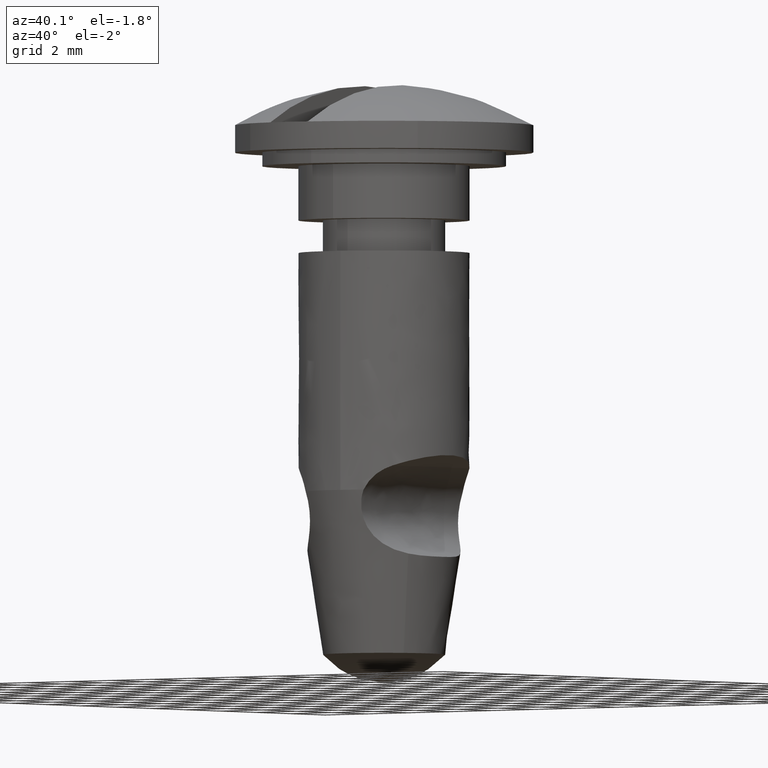
[diagram: clean part render]
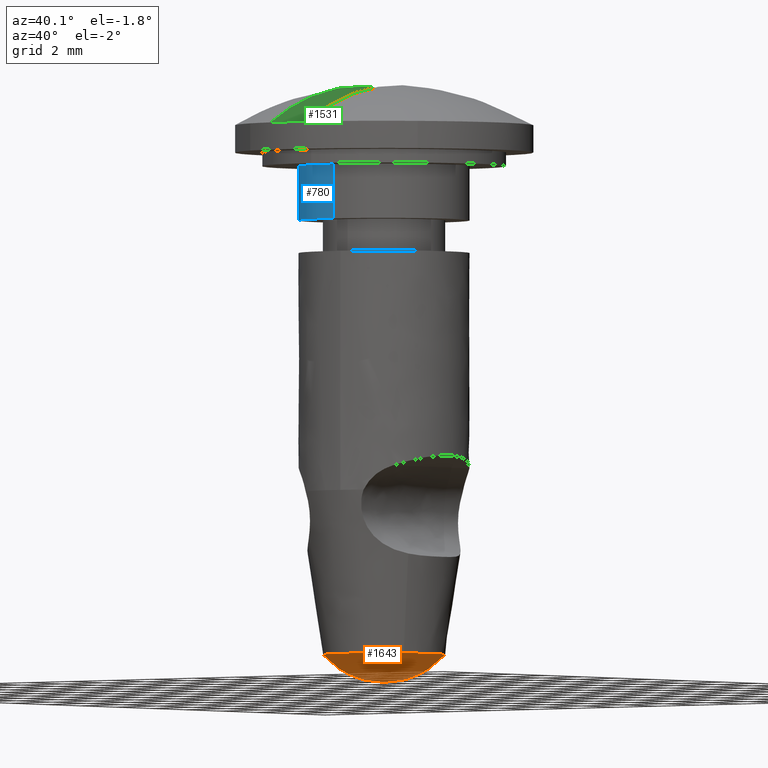
[diagram: same view with three faces highlighted in distinct colors, each labeled with its STEP entity id]
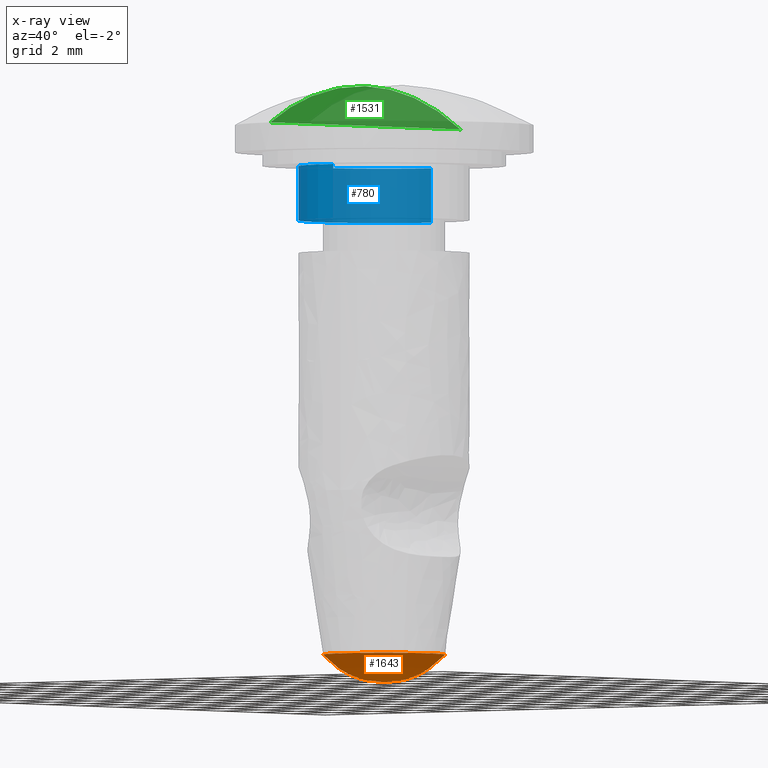
[diagram: x-ray of the same camera — body ghosted, the three highlighted faces saturated]
A machine part, auxiliary view with three faces highlighted in distinct colors.
The next image is the same camera in x-ray (body ghosted, the three faces saturated) — at least one of them is partly hidden behind the body in this view.
Their STEP definitions:

[orange] entity #1643 — the highlighted face is a freeform B-spline surface patch.
#66=CARTESIAN_POINT('',(-2.249943146963820,0.0,1.016622053279422));
#67=VERTEX_POINT('',#66);
#68=CARTESIAN_POINT('',(-1.776944158905297,1.380112811647953,1.016618732519282));
#69=VERTEX_POINT('',#68);
#70=CARTESIAN_POINT('',(-2.249943146963820,0.0,1.016622053279422));
#71=CARTESIAN_POINT('',(-2.249942949706229,0.771110511667350,1.016620392899352));
#72=CARTESIAN_POINT('',(-1.776944158905296,1.380112811647953,1.016618732519282));
#80=(BOUNDED_CURVE()B_SPLINE_CURVE(2,(#70,#71,#72),.UNSPECIFIED.,.F.,.U.)B_SPLINE_CURVE_WITH_KNOTS((3,3),(0.0,0.106108175314512),.UNSPECIFIED.)CURVE()GEOMETRIC_REPRESENTATION_ITEM()RATIONAL_B_SPLINE_CURVE((1.0,0.875686539958842,0.856898475213690))REPRESENTATION_ITEM(''));
#81=EDGE_CURVE('',#67,#69,#80,.T.);
#83=CARTESIAN_POINT('',(1.924413112960287,-1.165708945640619,1.016620591783184));
#84=VERTEX_POINT('',#83);
#85=CARTESIAN_POINT('',(1.924413112960287,-1.165708945640618,1.016620591783184));
#86=CARTESIAN_POINT('',(1.267640750574267,-2.249943042020005,1.016620706755440));
#87=CARTESIAN_POINT('',(-0.000000120275093,-2.249943074107452,1.016621118466386));
#88=CARTESIAN_POINT('',(-2.249943173219260,-2.249943131059646,1.016621849214505));
#89=CARTESIAN_POINT('',(-2.249943146963820,0.0,1.016622053279422));
#97=(BOUNDED_CURVE()B_SPLINE_CURVE(2,(#85,#86,#87,#88,#89),.UNSPECIFIED.,.F.,.U.)B_SPLINE_CURVE_WITH_KNOTS((3,2,3),(0.588495146954704,0.750000000000000,1.0),.UNSPECIFIED.)CURVE()GEOMETRIC_REPRESENTATION_ITEM()RATIONAL_B_SPLINE_CURVE((0.866043334965071,0.810785294950279,1.0,0.707106781186548,1.0))REPRESENTATION_ITEM(''));
#98=EDGE_CURVE('',#84,#67,#97,.T.);
#264=CARTESIAN_POINT('',(2.249943146963820,0.0,1.016622053279422));
#265=VERTEX_POINT('',#264);
#266=CARTESIAN_POINT('',(-1.776944158905296,1.380112811647953,1.016618732519282));
#267=CARTESIAN_POINT('',(-1.101366650165661,2.249942866255482,1.016619011075718));
#268=CARTESIAN_POINT('',(0.000000264862603,2.249942941250956,1.016619823846405));
#269=CARTESIAN_POINT('',(2.249943214568831,2.249943094456518,1.016621484226475));
#270=CARTESIAN_POINT('',(2.249943146963820,0.0,1.016622053279422));
#278=(BOUNDED_CURVE()B_SPLINE_CURVE(2,(#266,#267,#268,#269,#270),.UNSPECIFIED.,.F.,.U.)B_SPLINE_CURVE_WITH_KNOTS((3,2,3),(0.106108175314512,0.250000000000000,0.500000000000000),.UNSPECIFIED.)CURVE()GEOMETRIC_REPRESENTATION_ITEM()RATIONAL_B_SPLINE_CURVE((0.856898475213690,0.831420241227706,1.0,0.707106781186548,1.0))REPRESENTATION_ITEM(''));
#279=EDGE_CURVE('',#69,#265,#278,.T.);
#393=CARTESIAN_POINT('',(2.249943146963820,0.0,1.016622053279422));
#394=CARTESIAN_POINT('',(2.249943052944166,-0.628307358231895,1.016621322531303));
#395=CARTESIAN_POINT('',(1.924413112960287,-1.165708945640618,1.016620591783184));
#403=(BOUNDED_CURVE()B_SPLINE_CURVE(2,(#393,#394,#395),.UNSPECIFIED.,.F.,.U.)B_SPLINE_CURVE_WITH_KNOTS((3,3),(0.500000000000000,0.588495146954704),.UNSPECIFIED.)CURVE()GEOMETRIC_REPRESENTATION_ITEM()RATIONAL_B_SPLINE_CURVE((1.0,0.896321486236269,0.866043334965071))REPRESENTATION_ITEM(''));
#404=EDGE_CURVE('',#265,#84,#403,.T.);
#1613=CARTESIAN_POINT('',(-1.995273251922682,1.995264011835499,1.982272277182851));
#1614=CARTESIAN_POINT('',(-1.194927220953551,2.389843374519028,1.187536836528544));
#1615=CARTESIAN_POINT('',(1.194927230166059,2.389843374519028,1.187536836528544));
#1616=CARTESIAN_POINT('',(1.995273262225952,1.995264006755873,1.982272287413894));
#1617=CARTESIAN_POINT('',(-2.389850064596833,1.194919498614515,1.187545652974164));
#1618=CARTESIAN_POINT('',(-1.489481290753412,1.489474392982911,0.000999999999893));
#1619=CARTESIAN_POINT('',(1.489481302236837,1.489474392982911,0.000999999999893));
#1620=CARTESIAN_POINT('',(2.389850075734455,1.194919494970853,1.187545667651813));
#1621=CARTESIAN_POINT('',(-2.389850064596833,-1.194833675050050,1.187545652974161));
#1622=CARTESIAN_POINT('',(-1.489481290753412,-1.489367413389946,0.000999999999889));
#1623=CARTESIAN_POINT('',(1.489481302236837,-1.489367413389946,0.000999999999889));
#1624=CARTESIAN_POINT('',(2.389850075734455,-1.194833671406649,1.187545667651810));
#1625=CARTESIAN_POINT('',(-1.995320573137467,-1.995168022147036,1.982176966388926));
#1626=CARTESIAN_POINT('',(-1.194961165191694,-2.389739610361622,1.187400100719821));
#1627=CARTESIAN_POINT('',(1.194961174404463,-2.389739610361622,1.187400100719821));
#1628=CARTESIAN_POINT('',(1.995320583440860,-1.995168017067533,1.982176976620452));
#1636=(BOUNDED_SURFACE()B_SPLINE_SURFACE(2,2,((#1613,#1617,#1621,#1625),(#1614,#1618,#1622,#1626),(#1615,#1619,#1623,#1627),(#1616,#1620,#1624,#1628)),.UNSPECIFIED.,.F.,.F.,.U.)B_SPLINE_SURFACE_WITH_KNOTS((3,1,3),(3,1,3),(0.0,2.652107313333497,5.304214647113895),(0.0,2.652095031455428,5.303999579577748),.UNSPECIFIED.)GEOMETRIC_REPRESENTATION_ITEM()RATIONAL_B_SPLINE_SURFACE(((1.493009831428473,1.246506057278273,1.246506057278273,1.492974423063591),(1.246503774150200,1.0,1.0,1.246468365785319),(1.246503774150200,1.0,1.0,1.246468365785319),(1.493009835229439,1.246506061079238,1.246506061079238,1.492974426864558)))REPRESENTATION_ITEM('')SURFACE());
#1637=ORIENTED_EDGE('',*,*,#81,.T.);
#1638=ORIENTED_EDGE('',*,*,#279,.T.);
#1639=ORIENTED_EDGE('',*,*,#404,.T.);
#1640=ORIENTED_EDGE('',*,*,#98,.T.);
#1641=EDGE_LOOP('',(#1637,#1638,#1639,#1640));
#1642=FACE_OUTER_BOUND('',#1641,.T.);
#1643=ADVANCED_FACE('',(#1642),#1636,.T.);

[blue] entity #780 — the highlighted face is a freeform B-spline surface patch.
#617=CARTESIAN_POINT('',(-0.371805586218896,3.127980275841149,17.000000000000028));
#618=VERTEX_POINT('',#617);
#636=CARTESIAN_POINT('',(-0.371805613977400,3.127980272541671,19.0));
#637=VERTEX_POINT('',#636);
#638=CARTESIAN_POINT('',(-0.371805613977400,3.127980272541671,19.0));
#639=CARTESIAN_POINT('',(-0.371805586218896,3.127980275841149,17.000000000000028));
#640=QUASI_UNIFORM_CURVE('',1,(#638,#639),.UNSPECIFIED.,.F.,.U.);
#641=EDGE_CURVE('',#637,#618,#640,.T.);
#660=CARTESIAN_POINT('',(0.192302899548326,-3.144124615028053,19.0));
#661=VERTEX_POINT('',#660);
#675=CARTESIAN_POINT('',(0.192302899548326,-3.144124615028053,17.0));
#676=VERTEX_POINT('',#675);
#677=CARTESIAN_POINT('',(0.192302899548326,-3.144124615028053,19.0));
#678=CARTESIAN_POINT('',(0.192302899548326,-3.144124615028053,17.0));
#679=QUASI_UNIFORM_CURVE('',1,(#677,#678),.UNSPECIFIED.,.F.,.U.);
#680=EDGE_CURVE('',#661,#676,#679,.T.);
#698=CARTESIAN_POINT('',(0.192302899534800,-3.144124615028880,19.050000000000001));
#699=CARTESIAN_POINT('',(-2.951821715494082,-3.336427514563679,19.049999999999997));
#700=CARTESIAN_POINT('',(-3.144124615028880,-0.192302899534800,19.050000000000001));
#701=CARTESIAN_POINT('',(-3.325726519707461,2.776861996144427,19.050000000000011));
#702=CARTESIAN_POINT('',(-0.371807839168789,3.127980008045549,19.050000000000008));
#703=CARTESIAN_POINT('',(0.192302899534800,-3.144124615028880,16.948750000000000));
#704=CARTESIAN_POINT('',(-2.951821715494082,-3.336427514563679,16.948750000000004));
#705=CARTESIAN_POINT('',(-3.144124615028880,-0.192302899534800,16.948750000000000));
#706=CARTESIAN_POINT('',(-3.325726519707461,2.776861996144427,16.948750000000000));
#707=CARTESIAN_POINT('',(-0.371807839168789,3.127980008045549,16.948750000000004));
#715=(BOUNDED_SURFACE()B_SPLINE_SURFACE(2,1,((#698,#703),(#699,#704),(#700,#705),(#701,#706),(#702,#707)),.UNSPECIFIED.,.F.,.F.,.U.)B_SPLINE_SURFACE_WITH_KNOTS((3,2,3),(2,2),(0.0,5.219090885900997,10.229418136365950),(0.0,2.101250000000009),.UNSPECIFIED.)GEOMETRIC_REPRESENTATION_ITEM()RATIONAL_B_SPLINE_SURFACE(((1.0,1.0),(0.707106781186548,0.707106781186548),(1.0,1.0),(0.718822509939086,0.718822509939086),(0.977505800795127,0.977505800795127)))REPRESENTATION_ITEM('')SURFACE());
#716=CARTESIAN_POINT('',(-3.150000000000000,0.0,17.0));
#717=VERTEX_POINT('',#716);
#718=CARTESIAN_POINT('',(-3.150000000000000,0.0,17.0));
#719=CARTESIAN_POINT('',(-3.149999999999999,2.797751786032145,17.000000000000007));
#720=CARTESIAN_POINT('',(-0.371805586218896,3.127980275841150,17.000000000000025));
#728=(BOUNDED_CURVE()B_SPLINE_CURVE(2,(#718,#719,#720),.UNSPECIFIED.,.F.,.U.)B_SPLINE_CURVE_WITH_KNOTS((3,3),(0.0,0.229562595241444),.UNSPECIFIED.)CURVE()GEOMETRIC_REPRESENTATION_ITEM()RATIONAL_B_SPLINE_CURVE((1.0,0.731050690242254,0.956026992775574))REPRESENTATION_ITEM(''));
#729=EDGE_CURVE('',#717,#618,#728,.T.);
#730=ORIENTED_EDGE('',*,*,#729,.F.);
#731=CARTESIAN_POINT('',(0.192302899548326,-3.144124615028053,17.000000000000004));
#732=CARTESIAN_POINT('',(0.096241204404120,-3.150000000000000,16.999999999999996));
#733=CARTESIAN_POINT('',(0.0,-3.150000000000000,17.0));
#734=CARTESIAN_POINT('',(-3.149999999999999,-3.149999999999999,17.000000000000004));
#735=CARTESIAN_POINT('',(-3.150000000000000,0.0,17.0));
#743=(BOUNDED_CURVE()B_SPLINE_CURVE(2,(#731,#732,#733,#734,#735),.UNSPECIFIED.,.F.,.U.)B_SPLINE_CURVE_WITH_KNOTS((3,2,3),(0.739332962240484,0.750000000000000,1.0),.UNSPECIFIED.)CURVE()GEOMETRIC_REPRESENTATION_ITEM()RATIONAL_B_SPLINE_CURVE((0.976072041670020,0.987502787901642,1.0,0.707106781186548,1.0))REPRESENTATION_ITEM(''));
#744=EDGE_CURVE('',#676,#717,#743,.T.);
#745=ORIENTED_EDGE('',*,*,#744,.F.);
#746=ORIENTED_EDGE('',*,*,#680,.F.);
#747=CARTESIAN_POINT('',(-3.150000000000000,0.0,19.0));
#748=VERTEX_POINT('',#747);
#749=CARTESIAN_POINT('',(0.192302899548326,-3.144124615028053,19.000000000000004));
#750=CARTESIAN_POINT('',(0.096241204404120,-3.150000000000000,19.000000000000004));
#751=CARTESIAN_POINT('',(0.0,-3.150000000000000,19.0));
#752=CARTESIAN_POINT('',(-3.149999999999999,-3.149999999999999,18.999999999999993));
#753=CARTESIAN_POINT('',(-3.150000000000000,0.0,19.0));
#761=(BOUNDED_CURVE()B_SPLINE_CURVE(2,(#749,#750,#751,#752,#753),.UNSPECIFIED.,.F.,.U.)B_SPLINE_CURVE_WITH_KNOTS((3,2,3),(0.739332962240484,0.750000000000000,1.0),.UNSPECIFIED.)CURVE()GEOMETRIC_REPRESENTATION_ITEM()RATIONAL_B_SPLINE_CURVE((0.976072041670020,0.987502787901642,1.0,0.707106781186548,1.0))REPRESENTATION_ITEM(''));
#762=EDGE_CURVE('',#661,#748,#761,.T.);
#763=ORIENTED_EDGE('',*,*,#762,.T.);
#764=CARTESIAN_POINT('',(-3.150000000000000,0.0,19.0));
#765=CARTESIAN_POINT('',(-3.149999999999999,2.797751761029398,19.000000000000007));
#766=CARTESIAN_POINT('',(-0.371805613977400,3.127980272541670,19.000000000000004));
#774=(BOUNDED_CURVE()B_SPLINE_CURVE(2,(#764,#765,#766),.UNSPECIFIED.,.F.,.U.)B_SPLINE_CURVE_WITH_KNOTS((3,3),(0.0,0.229562593741666),.UNSPECIFIED.)CURVE()GEOMETRIC_REPRESENTATION_ITEM()RATIONAL_B_SPLINE_CURVE((1.0,0.731050691999354,0.956026989835943))REPRESENTATION_ITEM(''));
#775=EDGE_CURVE('',#748,#637,#774,.T.);
#776=ORIENTED_EDGE('',*,*,#775,.T.);
#777=ORIENTED_EDGE('',*,*,#641,.T.);
#778=EDGE_LOOP('',(#730,#745,#746,#763,#776,#777));
#779=FACE_OUTER_BOUND('',#778,.T.);
#780=ADVANCED_FACE('',(#779),#715,.T.);

[green] entity #1531 — the highlighted face is a freeform B-spline surface patch.
#1270=CARTESIAN_POINT('',(-0.899999999999988,5.425863986500220,20.500294642836302));
#1271=VERTEX_POINT('',#1270);
#1287=CARTESIAN_POINT('',(-0.899999999999988,5.425863986500220,20.500000000000000));
#1288=VERTEX_POINT('',#1287);
#1289=CARTESIAN_POINT('',(-0.899999999999988,5.425863986500220,20.500000000000000));
#1290=CARTESIAN_POINT('',(-0.899999999999988,5.425863986500220,20.500294642836302));
#1291=QUASI_UNIFORM_CURVE('',1,(#1289,#1290),.UNSPECIFIED.,.F.,.U.);
#1292=EDGE_CURVE('',#1288,#1271,#1291,.T.);
#1425=CARTESIAN_POINT('',(-0.899999999999987,-5.425863986500220,20.500000000000000));
#1426=VERTEX_POINT('',#1425);
#1440=CARTESIAN_POINT('',(-0.899999999999987,-5.425863986500220,20.500294642836302));
#1441=VERTEX_POINT('',#1440);
#1442=CARTESIAN_POINT('',(-0.899999999999987,-5.425863986500220,20.500000000000000));
#1443=CARTESIAN_POINT('',(-0.899999999999987,-5.425863986500220,20.500294642836302));
#1444=QUASI_UNIFORM_CURVE('',1,(#1442,#1443),.UNSPECIFIED.,.F.,.U.);
#1445=EDGE_CURVE('',#1426,#1441,#1444,.T.);
#1469=CARTESIAN_POINT('',(-0.899999999999987,-5.425863986500220,20.500000000000000));
#1470=CARTESIAN_POINT('',(-0.899999999999988,5.425863986500220,20.500000000000000));
#1471=QUASI_UNIFORM_CURVE('',1,(#1469,#1470),.UNSPECIFIED.,.F.,.U.);
#1472=EDGE_CURVE('',#1426,#1288,#1471,.T.);
#1508=CARTESIAN_POINT('',(-0.899999999999987,-5.967908083323612,20.426930618343832));
#1509=CARTESIAN_POINT('',(-0.899999999999987,5.967908083323612,20.426930618343832));
#1510=CARTESIAN_POINT('',(-0.899999999999987,-5.967908083323612,22.035919961262479));
#1511=CARTESIAN_POINT('',(-0.899999999999987,5.967908083323612,22.035919961262479));
#1512=B_SPLINE_SURFACE_WITH_KNOTS('',1,1,((#1508,#1510),(#1509,#1511)),.UNSPECIFIED.,.F.,.F.,.U.,(2,2),(2,2),(0.0,11.935816166647230),(0.041708334948495,0.958291687403247),.UNSPECIFIED.);
#1513=CARTESIAN_POINT('',(-0.899999999999988,5.425863986500220,20.500294642836302));
#1514=CARTESIAN_POINT('',(-0.899999999999988,1.626820E-015,23.654593432985180));
#1515=CARTESIAN_POINT('',(-0.899999999999987,-5.425863986500220,20.500294642836302));
#1523=(BOUNDED_CURVE()B_SPLINE_CURVE(2,(#1513,#1514,#1515),.UNSPECIFIED.,.F.,.U.)CURVE()GEOMETRIC_REPRESENTATION_ITEM()QUASI_UNIFORM_CURVE()RATIONAL_B_SPLINE_CURVE((1.0,0.864526107316491,1.0))REPRESENTATION_ITEM(''));
#1524=EDGE_CURVE('',#1271,#1441,#1523,.T.);
#1525=ORIENTED_EDGE('',*,*,#1524,.T.);
#1526=ORIENTED_EDGE('',*,*,#1445,.F.);
#1527=ORIENTED_EDGE('',*,*,#1472,.T.);
#1528=ORIENTED_EDGE('',*,*,#1292,.T.);
#1529=EDGE_LOOP('',(#1525,#1526,#1527,#1528));
#1530=FACE_OUTER_BOUND('',#1529,.T.);
#1531=ADVANCED_FACE('',(#1530),#1512,.T.);